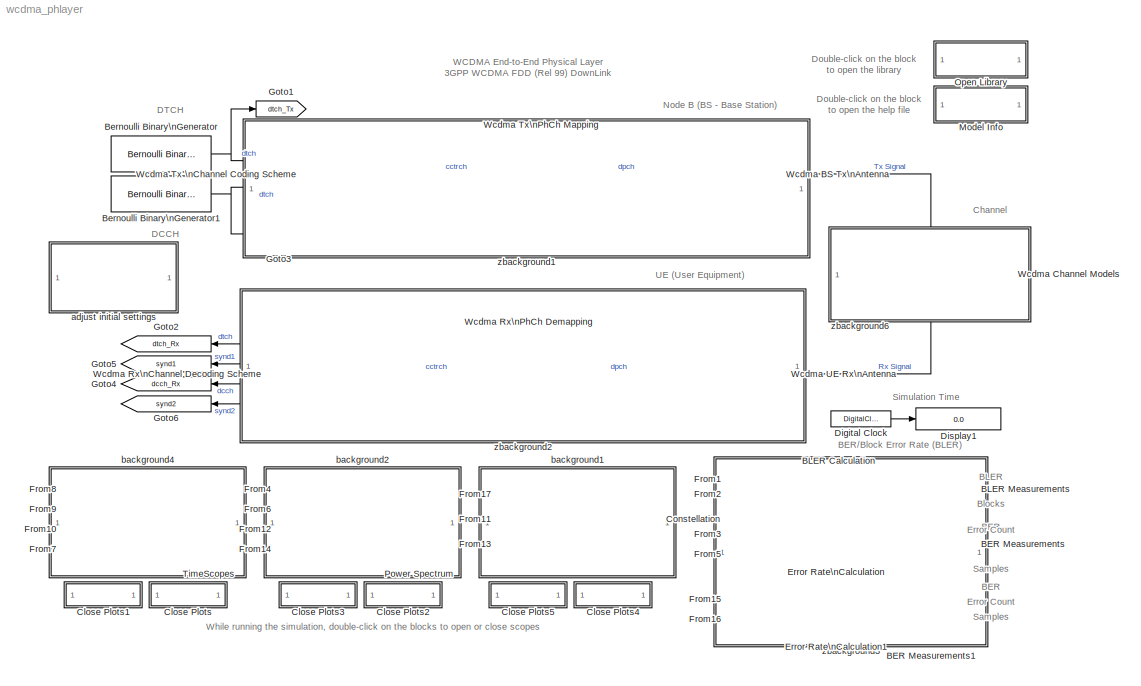
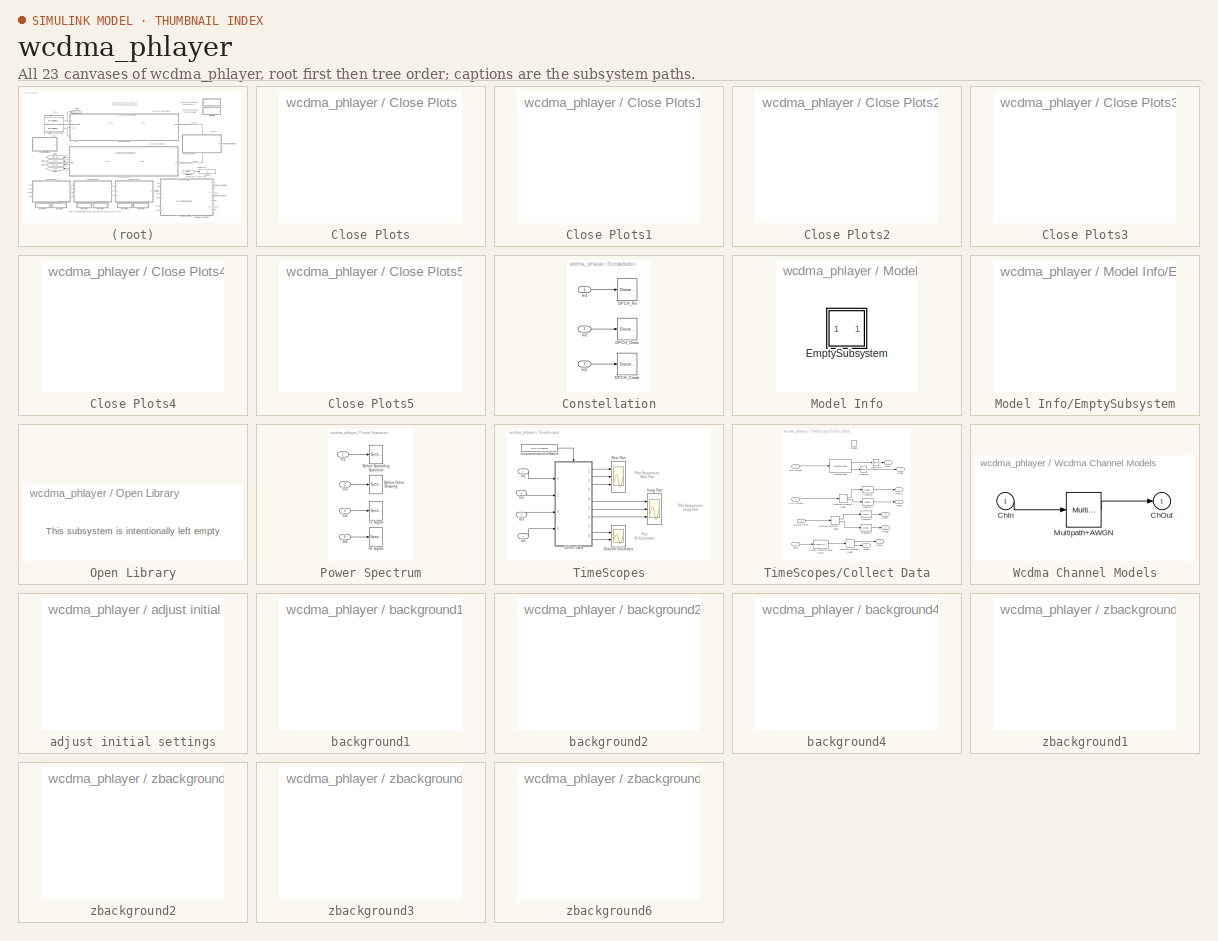
[diagram: thumbnail index - all 23 canvases of the model, root first then tree order]
MODEL wcdma_phlayer
KIND model
CONFIG PreLoadFcn = wcdma_loadinitphlayer;
WORKSPACE source: external: M-Code  (data not in archive)
BLOCK [Display] BER Measurements
  Decimation = 1
  Ports = [1]
BLOCK [Display] BER Measurements1
  Decimation = 1
  Ports = [1]
BLOCK [Reference] BLER Calculation  REF=wcdma_lib/Wcdma Common/BLER Calculation  (lib defined in mdl_415921f2943f)
  Ports = [2, 1]
  ShowPortLabels = on
  SourceBlock = wcdma_lib/Wcdma Common/BLER Calculation
  SourceType = BLER Calculation
  numBitsDelay = totalBitsDelay
  trBlkSetSize = trBlkSetSize
  tti = tti
BLOCK [Display] BLER Measurements
  Decimation = 1
  Ports = [1]
BLOCK [Reference] Bernoulli Binary\nGenerator  REF=commrandsrc2/Bernoulli Binary\nGenerator
  P = 0.5
  Ports = [0, 1]
  ShowPortLabels = on
  SourceBlock = commrandsrc2/Bernoulli Binary\nGenerator
  SourceType = Bernoulli Binary Generator
  Ts = (tti(1)*1e-3)/trBlkSetSize(1)
  frameBased = on
  orient = off
  sampPerFrame = trBlkSetSize(1)
  seed = [123456]
BLOCK [Reference] Bernoulli Binary\nGenerator1  REF=commrandsrc2/Bernoulli Binary\nGenerator
  P = 0.5
  Ports = [0, 1]
  ShowPortLabels = on
  SourceBlock = commrandsrc2/Bernoulli Binary\nGenerator
  SourceType = Bernoulli Binary Generator
  Ts = (tti(2)*1e-3)/trBlkSetSize(2)
  frameBased = on
  orient = off
  sampPerFrame = trBlkSetSize(2)
  seed = [123456]
BLOCK [SubSystem] Close Plots
  MaskDisplay = disp('Close Scopes');
  MaskIconFrame = on
  MaskIconOpaque = on
  MaskIconRotate = none
  MaskIconUnits = autoscale
  MinAlgLoopOccurrences = off
  OpenFcn = ssName = gcs;                                                      \n  set_param([ssName '/TimeScopes/Real Part'],'Open','off');        \n  set_param([ssName '/TimeScopes/Imag Part'],'Open','off');        \n  set_param([ssName '/TimeScopes/Channel Estimates'],'Open','off');\n
  Ports = []
  PropExecContextAcrossSSBoundary = on
  RTWSystemCode = Auto
  TreatAsAtomicUnit = off
BLOCK [SubSystem] Close Plots1
  MaskDisplay = disp('Open Scopes');
  MaskIconFrame = on
  MaskIconOpaque = on
  MaskIconRotate = none
  MaskIconUnits = autoscale
  MinAlgLoopOccurrences = off
  OpenFcn = ssName=gcs;                                                       \nset_param([ssName '/TimeScopes/Real Part'],'Open','on');          \n  set_param([ssName '/TimeScopes/Imag Part'],'Open','on');        \n  set_param([ssName '/TimeScopes/Channel Estimates'],'Open','on');
  Ports = []
  PropExecContextAcrossSSBoundary = on
  RTWSystemCode = Auto
  TreatAsAtomicUnit = off
BLOCK [SubSystem] Close Plots2
  MaskDisplay = disp('Close Scopes');
  MaskIconFrame = on
  MaskIconOpaque = on
  MaskIconRotate = none
  MaskIconUnits = autoscale
  MinAlgLoopOccurrences = off
  OpenFcn = set_param([gcs '/Power Spectrum/Before Spreading Spectrum'],'OpenScopeAtSimStart','off');          \n  set_param([gcs '/Power Spectrum/Before Pulse Shaping'],'OpenScopeAtSimStart','off');             \n  set_param([gcs '/Power Spectrum/Tx Signal'],'OpenScopeAtSimStart','off');                        \n  set_param([gcs '/Power Spectrum/Rx Signal'],'OpenScopeAtSimStart','off');                      ...<+390ch>
  Ports = []
  PropExecContextAcrossSSBoundary = on
  RTWSystemCode = Auto
  TreatAsAtomicUnit = off
BLOCK [SubSystem] Close Plots3
  MaskDisplay = disp('Open Scopes');
  MaskIconFrame = on
  MaskIconOpaque = on
  MaskIconRotate = none
  MaskIconUnits = autoscale
  MinAlgLoopOccurrences = off
  OpenFcn = set_param([gcs '/Power Spectrum/Before Spreading Spectrum'],'OpenScopeAtSimStart','on');          \n  set_param([gcs '/Power Spectrum/Before Pulse Shaping'],'OpenScopeAtSimStart','on');             \n  set_param([gcs '/Power Spectrum/Tx Signal'],'OpenScopeAtSimStart','on');                        \n  set_param([gcs '/Power Spectrum/Rx Signal'],'OpenScopeAtSimStart','on');                        \n...<+400ch>
  Ports = []
  PropExecContextAcrossSSBoundary = on
  RTWSystemCode = Auto
  TreatAsAtomicUnit = off
BLOCK [SubSystem] Close Plots4
  MaskDisplay = disp('Close Scopes');
  MaskIconFrame = on
  MaskIconOpaque = on
  MaskIconRotate = none
  MaskIconUnits = autoscale
  MinAlgLoopOccurrences = off
  OpenFcn = \nset_param([bdroot '/Constellation/DPCH_Rx'],'OpenScopeAtSimStart','off');           \nset_param([bdroot '/Constellation/DPCH_Derot'],'OpenScopeAtSimStart','off');        \nset_param([bdroot '/Constellation/DPCH_Comb'],'OpenScopeAtSimStart','off');         \nsdspfscope2([],[],[],'ScopeUpdate',[bdroot '/Constellation/DPCH_Rx'],'CloseFig');   \nsdspfscope2([],[],[],'ScopeUpdate',[bdroot '/Constella...<+118ch>
  Ports = []
  PropExecContextAcrossSSBoundary = on
  RTWSystemCode = Auto
  TreatAsAtomicUnit = off
BLOCK [SubSystem] Close Plots5
  MaskDisplay = disp('Open Scopes');
  MaskIconFrame = on
  MaskIconOpaque = on
  MaskIconRotate = none
  MaskIconUnits = autoscale
  MinAlgLoopOccurrences = off
  OpenFcn = sdspfscope2([],[],[],'ScopeUpdate',[bdroot '/Constellation/DPCH_Rx'],'OpenFig');   \nsdspfscope2([],[],[],'ScopeUpdate',[bdroot '/Constellation/DPCH_Derot'],'OpenFig');\nsdspfscope2([],[],[],'ScopeUpdate',[bdroot '/Constellation/DPCH_Comb'],'OpenFig'); \nset_param([bdroot '/Constellation/DPCH_Rx'],'OpenScopeAtSimStart','on');           \nset_param([bdroot '/Constellation/DPCH_Derot'],'OpenScopeAtS...<+110ch>
  Ports = []
  PropExecContextAcrossSSBoundary = on
  RTWSystemCode = Auto
  TreatAsAtomicUnit = off
BLOCK [SubSystem] Constellation
  MaskDisplay = disp('Scatter\\nPlot')
  MaskIconFrame = on
  MaskIconOpaque = on
  MaskIconRotate = none
  MaskIconUnits = autoscale
  MinAlgLoopOccurrences = off
  Ports = [3]
  PropExecContextAcrossSSBoundary = on
  RTWSystemCode = Auto
  TreatAsAtomicUnit = on
BLOCK [Reference] Constellation/DPCH_Comb  REF=commsink2/Discrete-Time\nScatter Plot\nScope
  AxisGrid = on
  FigPos = [685 314 327 327]
  FrameNumber = off
  LineColors = [1 0 1]
  LineMarkers = .
  Ports = [1]
  ShowPortLabels = on
  SourceBlock = commsink2/Discrete-Time\nScatter Plot\nScope
  SourceType = Discrete-Time Scatter Plot Scope
  Tag = ScatterPlot
  block_type_ = scatter
  fading = on
  figTitle = Scatter Plot
  inphaseLabel = In-phase Amplitude
  numLinesMax = 50
  numNewFrames = 20
  numTraces = 70
  offsetEye = 0
  openScopeAtSimStart = off
  quadratureLabel = Quadrature Amplitude
  render = off
  sampPerSymb = 1
  xMax = 2.7
  xMin = -2.7
  yMax = 2.7
  yMin = -2.7
BLOCK [Reference] Constellation/DPCH_Derot  REF=commsink2/Discrete-Time\nScatter Plot\nScope
  AxisGrid = on
  FigPos = [344 313 328 328]
  FrameNumber = off
  LineColors = b
  LineMarkers = .
  Ports = [1]
  ShowPortLabels = on
  SourceBlock = commsink2/Discrete-Time\nScatter Plot\nScope
  SourceType = Discrete-Time Scatter Plot Scope
  Tag = ScatterPlot
  block_type_ = scatter
  fading = on
  figTitle = Scatter Plot
  inphaseLabel = In-phase Amplitude
  numLinesMax = 50
  numNewFrames = 5
  numTraces = 30
  offsetEye = 0
  openScopeAtSimStart = off
  quadratureLabel = Quadrature Amplitude
  render = off
  sampPerSymb = 1
  xMax = 0.344086050451824
  xMin = -0.364657245618191
  yMax = 0.336138236123828
  yMin = -0.372605059946187
BLOCK [Reference] Constellation/DPCH_Rx  REF=commsink2/Discrete-Time\nScatter Plot\nScope
  AxisGrid = on
  FigPos = [12 320 320 320]
  FrameNumber = off
  LineColors = [1 0 0]
  LineMarkers = .
  Ports = [1]
  ShowPortLabels = on
  SourceBlock = commsink2/Discrete-Time\nScatter Plot\nScope
  SourceType = Discrete-Time Scatter Plot Scope
  Tag = ScatterPlot
  block_type_ = scatter
  fading = on
  figTitle = Scatter Plot
  inphaseLabel = In-phase Amplitude
  numLinesMax = 50
  numNewFrames = 6
  numTraces = 30
  offsetEye = 0
  openScopeAtSimStart = off
  quadratureLabel = Quadrature Amplitude
  render = off
  sampPerSymb = 1
  xMax = 0.765534044638798
  xMin = -0.857650806774146
  yMax = 0.874669958794914
  yMin = -0.74851489261803
BLOCK [Inport] Constellation/In1
  IconDisplay = Port number
  LatchInput = off
BLOCK [Inport] Constellation/In2
  IconDisplay = Port number
  LatchInput = off
  Port = 2
BLOCK [Inport] Constellation/In3
  IconDisplay = Port number
  LatchInput = off
  Port = 3
BLOCK [DigitalClock] Digital Clock
  SampleTime = 0.001
BLOCK [Display] Display1
  Decimation = 1
  Ports = [1]
BLOCK [Reference] Error Rate\nCalculation  REF=commsink2/Error Rate\nCalculation
  N = totalBitsDelay(1)
  PMode = Port
  Ports = [2, 1]
  RsMode2 = off
  SourceBlock = commsink2/Error Rate\nCalculation
  SourceType = Error Rate Calculation
  WsName = ErrorVec
  cp_mode = Entire frame
  maxBits = 1e6
  numErr = 100
  st_delay = 0
  stop = off
  subframe = []
BLOCK [Reference] Error Rate\nCalculation1  REF=commsink2/Error Rate\nCalculation
  N = totalBitsDelay(2)
  PMode = Port
  Ports = [2, 1]
  RsMode2 = off
  SourceBlock = commsink2/Error Rate\nCalculation
  SourceType = Error Rate Calculation
  WsName = ErrorVec
  cp_mode = Entire frame
  maxBits = 1e6
  numErr = 100
  st_delay = 0
  stop = off
  subframe = []
BLOCK [From] From1
  CloseFcn = tagdialog Close
  DialogController = Simulink.DDGSource
  GotoTag = synd1
BLOCK [From] From10
  CloseFcn = tagdialog Close
  DialogController = Simulink.DDGSource
  GotoTag = DPCH_Tx_all
BLOCK [From] From11
  CloseFcn = tagdialog Close
  DialogController = Simulink.DDGSource
  GotoTag = DPCH_Derot
BLOCK [From] From12
  CloseFcn = tagdialog Close
  DialogController = Simulink.DDGSource
  GotoTag = ToChannel
BLOCK [From] From13
  CloseFcn = tagdialog Close
  DialogController = Simulink.DDGSource
  GotoTag = DPCH_Comb
BLOCK [From] From14
  CloseFcn = tagdialog Close
  DialogController = Simulink.DDGSource
  GotoTag = RxSignal
BLOCK [From] From15
  CloseFcn = tagdialog Close
  DialogController = Simulink.DDGSource
  GotoTag = dcch_Tx
BLOCK [From] From16
  CloseFcn = tagdialog Close
  DialogController = Simulink.DDGSource
  GotoTag = dcch_Rx
BLOCK [From] From17
  CloseFcn = tagdialog Close
  DialogController = Simulink.DDGSource
  GotoTag = DPCH_Rx
BLOCK [From] From2
  CloseFcn = tagdialog Close
  DialogController = Simulink.DDGSource
  GotoTag = synd2
BLOCK [From] From3
  CloseFcn = tagdialog Close
  DialogController = Simulink.DDGSource
  GotoTag = dtch_Tx
BLOCK [From] From4
  CloseFcn = tagdialog Close
  DialogController = Simulink.DDGSource
  GotoTag = DPCH_Tx
BLOCK [From] From5
  CloseFcn = tagdialog Close
  DialogController = Simulink.DDGSource
  GotoTag = dtch_Rx
BLOCK [From] From6
  CloseFcn = tagdialog Close
  DialogController = Simulink.DDGSource
  GotoTag = DPCH_Tx_all
BLOCK [From] From7
  CloseFcn = tagdialog Close
  DialogController = Simulink.DDGSource
  GotoTag = chEst
BLOCK [From] From8
  CloseFcn = tagdialog Close
  DialogController = Simulink.DDGSource
  GotoTag = DPCH_Tx
BLOCK [From] From9
  CloseFcn = tagdialog Close
  DialogController = Simulink.DDGSource
  GotoTag = DPCH_Tx_sprd
BLOCK [Goto] Goto1
  DialogController = Simulink.DDGSource
  GotoTag = dtch_Tx
  TagVisibility = global
BLOCK [Goto] Goto2
  DialogController = Simulink.DDGSource
  GotoTag = dtch_Rx
  TagVisibility = global
BLOCK [Goto] Goto3
  DialogController = Simulink.DDGSource
  GotoTag = dcch_Tx
  TagVisibility = global
BLOCK [Goto] Goto4
  DialogController = Simulink.DDGSource
  GotoTag = dcch_Rx
  TagVisibility = global
BLOCK [Goto] Goto5
  DialogController = Simulink.DDGSource
  GotoTag = synd1
  TagVisibility = global
BLOCK [Goto] Goto6
  DialogController = Simulink.DDGSource
  GotoTag = synd2
  TagVisibility = global
BLOCK [SubSystem] Model Info
  CopyFcn = slcm CopyBlock;
  DeleteFcn = slcm Cancel;
  InitFcn = slcm('UpdateAllCMBlocksInThisModelInit')
  LoadFcn = slcm LoadBlock;
  MaskCallbackString = ||||||||||||||||||||||||||||||
  MaskDescription = This block allows revision control information to be displayed within the model.
  MaskDisplay = text(str2num(LeftAlignmentValue), 0.5, MaskDisplayString, 'HorizontalAlignment', HorizontalTextAlignment)\n
  MaskEnableString = on,on,on,on,on,on,on,on,on,on,on,on,on,on,on,on,on,on,on,on,on,on,on,on,on,on,on,on,on,on,on
  MaskIconFrame = on
  MaskIconOpaque = on
  MaskIconRotate = none
  MaskIconUnits = normalized
  MaskPromptString = InitialSaveTempField|InitialBlockCM|BlockCM|Frame|SaveTempField|DisplayStringWithTags|MaskDisplayString|HorizontalTextAlignment|LeftAlignmentValue|SourceBlockDiagram|TagMaxNumber|CMTag1|CMTag2|CMTag3|CMTag4|CMTag5|CMTag6|CMTag7|CMTag8|CMTag9|CMTag10|CMTag11|CMTag12|CMTag13|CMTag14|CMTag15|CMTag16|CMTag17|CMTag18|CMTag19|CMTag20
  MaskSelfModifiable = on
  MaskStyleString = edit,edit,edit,edit,edit,edit,edit,edit,edit,edit,edit,edit,edit,edit,edit,edit,edit,edit,edit,edit,edit,edit,edit,edit,edit,edit,edit,edit,edit,edit,edit
  MaskTabNameString = ,,,,,,,,,,,,,,,,,,,,,,,,,,,,,,
  MaskToolTipString = on,on,on,on,on,on,on,on,on,on,on,on,on,on,on,on,on,on,on,on,on,on,on,on,on,on,on,on,on,on,on
  MaskTunableValueString = on,on,on,on,on,on,on,on,on,on,on,on,on,on,on,on,on,on,on,on,on,on,on,on,on,on,on,on,on,on,on
  MaskType = CMBlock
  MaskValueString = |none|none|on||Info|Info|Center|0.5|wcdma_phlayer|20||||||||||||||||||||
  MaskVarAliasString = ,,,,,,,,,,,,,,,,,,,,,,,,,,,,,,
  MaskVariables = InitialSaveTempField=&1;InitialBlockCM=&2;BlockCM=&3;Frame=&4;SaveTempField=&5;DisplayStringWithTags=&6;MaskDisplayString=&7;HorizontalTextAlignment=&8;LeftAlignmentValue=&9;SourceBlockDiagram=&10;TagMaxNumber=@11;CMTag1=&12;CMTag2=&13;CMTag3=&14;CMTag4=&15;CMTag5=&16;CMTag6=&17;CMTag7=&18;CMTag8=&19;CMTag9=&20;CMTag10=&21;CMTag11=&22;CMTag12=&23;CMTag13=&24;CMTag14=&25;CMTag15=&26;CMTag16=&27;CMT...<+45ch>
  MaskVisibilityString = off,off,off,off,off,off,off,off,off,off,off,off,off,off,off,off,off,off,off,off,off,off,off,off,off,off,off,off,off,off,off
  MinAlgLoopOccurrences = off
  NameChangeFcn = slcm Rename;
  OpenFcn = commdemohelp;
  Ports = []
  PostSaveFcn = slcm('UpdateAllCMBlocksInThisModel')
  PropExecContextAcrossSSBoundary = on
  RTWSystemCode = Auto
  TreatAsAtomicUnit = off
BLOCK [SubSystem] Model Info/EmptySubsystem
  MinAlgLoopOccurrences = off
  Ports = []
  PropExecContextAcrossSSBoundary = on
  RTWSystemCode = Auto
  TreatAsAtomicUnit = off
BLOCK [SubSystem] Open Library
  MaskDisplay = disp('WCDMA\\nLibrary')
  MaskIconFrame = on
  MaskIconOpaque = on
  MaskIconRotate = none
  MaskIconUnits = autoscale
  MinAlgLoopOccurrences = off
  OpenFcn = open('wcdma_lib.mdl');
  Ports = []
  PropExecContextAcrossSSBoundary = on
  RTWSystemCode = Auto
  ShowPortLabels = off
  TreatAsAtomicUnit = off
BLOCK [SubSystem] Power Spectrum
  MaskDisplay = disp('Power\\nSpectrum')
  MaskIconFrame = on
  MaskIconOpaque = on
  MaskIconRotate = none
  MaskIconUnits = autoscale
  MinAlgLoopOccurrences = off
  Ports = [4]
  PropExecContextAcrossSSBoundary = on
  RTWSystemCode = Auto
  TreatAsAtomicUnit = on
BLOCK [Reference] Power Spectrum/Before Pulse Shaping  REF=dspsnks4/Spectrum\nScope
  AxisGrid = on
  AxisLegend = off
  AxisProperties = off
  AxisZoom = off
  BufferSize = 256
  DisplayProperties = off
  Domain = Frequency
  FFTlength = 128
  FigPos = [358 496 308 199]
  FrameNumber = off
  HorizSpan = 1
  InheritXIncr = on
  LineColors = [1 0 0]
  LineProperties = off
  Memory = off
  OpenScopeAtSimStart = off
  OpenScopeImmediately = off
  Overlap = 0
  Ports = [1]
  ScopeProperties = on
  ShowPortLabels = off
  SourceBlock = dspsnks4/Spectrum\nScope
  SourceType = Spectrum Scope
  UseBuffer = on
  XIncr = 1.0
  XLabel = Samples
  XRange = [-Fs/2...Fs/2]
  XUnits = Hertz
  YLabel = Magnitude, dB
  YMax = 20
  YMin = -20
  YUnits = dB
  inpFftLenInherit = off
  numAvg = 20
BLOCK [Reference] Power Spectrum/Before Spreading Spectrum  REF=dspsnks4/Spectrum\nScope
  AxisGrid = on
  AxisLegend = off
  AxisProperties = off
  AxisZoom = off
  BufferSize = 64
  DisplayProperties = off
  Domain = Frequency
  FFTlength = 128
  FigPos = [29 496 308 199]
  FrameNumber = off
  HorizSpan = 1
  InheritXIncr = on
  LineColors = [1 0 0]
  LineProperties = off
  Memory = off
  OpenScopeAtSimStart = off
  OpenScopeImmediately = off
  Overlap = 0
  Ports = [1]
  ScopeProperties = on
  ShowPortLabels = off
  SourceBlock = dspsnks4/Spectrum\nScope
  SourceType = Spectrum Scope
  UseBuffer = on
  XIncr = 1.0
  XLabel = Samples
  XRange = [-Fs/2...Fs/2]
  XUnits = Hertz
  YLabel = Magnitude, dB
  YMax = 19.2304598955481
  YMin = -0.913387640631292
  YUnits = Magnitude
  inpFftLenInherit = off
  numAvg = 2
BLOCK [Inport] Power Spectrum/In1
  IconDisplay = Port number
  LatchInput = off
BLOCK [Inport] Power Spectrum/In3
  IconDisplay = Port number
  LatchInput = off
  Port = 2
BLOCK [Inport] Power Spectrum/In4
  IconDisplay = Port number
  LatchInput = off
  Port = 3
BLOCK [Inport] Power Spectrum/In6
  IconDisplay = Port number
  LatchInput = off
  Port = 4
BLOCK [Reference] Power Spectrum/Rx Signal  REF=dspsnks4/Spectrum\nScope
  AxisGrid = on
  AxisLegend = off
  AxisProperties = off
  AxisZoom = off
  BufferSize = 2048
  DisplayProperties = off
  Domain = Frequency
  FFTlength = 128
  FigPos = [289 234 381 201]
  FrameNumber = off
  HorizSpan = 1
  InheritXIncr = on
  LineColors = [1 0 0]
  LineProperties = off
  Memory = off
  OpenScopeAtSimStart = off
  OpenScopeImmediately = off
  Overlap = 0
  Ports = [1]
  ScopeProperties = on
  ShowPortLabels = off
  SourceBlock = dspsnks4/Spectrum\nScope
  SourceType = Spectrum Scope
  UseBuffer = on
  XIncr = 1.0
  XLabel = Samples
  XRange = [-Fs/2...Fs/2]
  XUnits = Hertz
  YLabel = Magnitude, dB
  YMax = 17.9084191472902
  YMin = 10.012094494741
  YUnits = dB
  inpFftLenInherit = off
  numAvg = 100
BLOCK [Reference] Power Spectrum/Tx Signal  REF=dspsnks4/Spectrum\nScope
  AxisGrid = on
  AxisLegend = off
  AxisProperties = off
  AxisZoom = off
  BufferSize = 2048
  DisplayProperties = off
  Domain = Frequency
  FFTlength = 128
  FigPos = [695 496 308 198]
  FrameNumber = off
  HorizSpan = 1
  InheritXIncr = on
  LineColors = [1 0 0]
  LineProperties = off
  Memory = off
  OpenScopeAtSimStart = off
  OpenScopeImmediately = off
  Overlap = 0
  Ports = [1]
  ScopeProperties = on
  ShowPortLabels = off
  SourceBlock = dspsnks4/Spectrum\nScope
  SourceType = Spectrum Scope
  UseBuffer = on
  XIncr = 1.0
  XLabel = Samples
  XRange = [-Fs/2...Fs/2]
  XUnits = Hertz
  YLabel = Magnitude, dB
  YMax = 20
  YMin = -50
  YUnits = dB
  inpFftLenInherit = off
  numAvg = 100
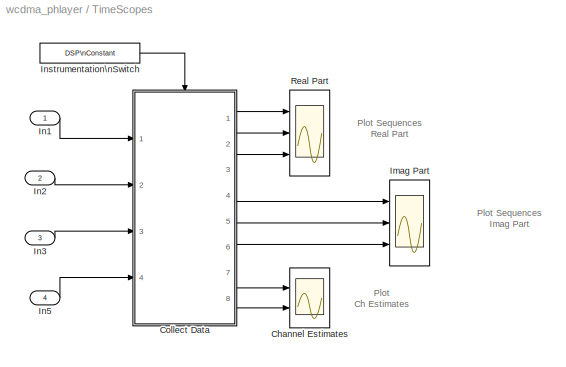
BLOCK [SubSystem] TimeScopes
  MaskDisplay = disp('Time\\nScopes')
  MaskIconFrame = on
  MaskIconOpaque = on
  MaskIconRotate = none
  MaskIconUnits = pixels
  MinAlgLoopOccurrences = off
  Ports = [4]
  PropExecContextAcrossSSBoundary = on
  RTWSystemCode = Auto
  TreatAsAtomicUnit = on
BLOCK [Scope] TimeScopes/Channel Estimates
  DataFormat = Structure
  NumInputPorts = 2
  Ports = [2]
  SaveName = ScopeData4
  TimeRange = 0.1
  YMax = 0.5~0.3
  YMin = -0.15~-0.35
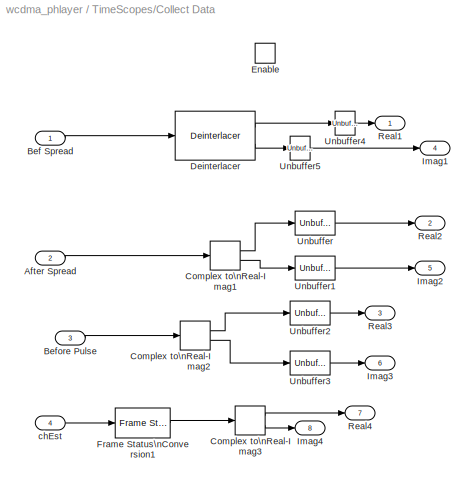
BLOCK [SubSystem] TimeScopes/Collect Data
  MaskIconFrame = on
  MaskIconOpaque = on
  MaskIconRotate = none
  MaskIconUnits = autoscale
  MinAlgLoopOccurrences = off
  Ports = [4, 8, 1]
  PropExecContextAcrossSSBoundary = on
  RTWSystemCode = Auto
  TreatAsAtomicUnit = on
BLOCK [Inport] TimeScopes/Collect Data/After Spread
  IconDisplay = Port number
  LatchInput = off
  Port = 2
BLOCK [Inport] TimeScopes/Collect Data/Bef Spread
  IconDisplay = Port number
  LatchInput = off
BLOCK [Inport] TimeScopes/Collect Data/Before Pulse
  IconDisplay = Port number
  LatchInput = off
  Port = 3
BLOCK [ComplexToRealImag] TimeScopes/Collect Data/Complex to\nReal-Imag1
  Output = Real and imag
  Ports = [1, 2]
BLOCK [ComplexToRealImag] TimeScopes/Collect Data/Complex to\nReal-Imag2
  Output = Real and imag
  Ports = [1, 2]
BLOCK [ComplexToRealImag] TimeScopes/Collect Data/Complex to\nReal-Imag3
  Output = Real and imag
  Ports = [1, 2]
BLOCK [Reference] TimeScopes/Collect Data/Deinterlacer  REF=commsequence2/Deinterlacer
  Ports = [1, 2]
  SourceBlock = commsequence2/Deinterlacer
  SourceType = Deinterlacer
BLOCK [EnablePort] TimeScopes/Collect Data/Enable
  Ports = []
BLOCK [Reference] TimeScopes/Collect Data/Frame Status\nConversion1  REF=dspsigattribs/Frame Status\nConversion
  Ports = [1, 1]
  ShowPortLabels = off
  SourceBlock = dspsigattribs/Frame Status\nConversion
  SourceType = Frame Status Conversion
  growRefPort = off
  outframe = Sample-based
BLOCK [Outport] TimeScopes/Collect Data/Imag1
  BusOutputAsStruct = off
  IconDisplay = Port number
  Port = 4
BLOCK [Outport] TimeScopes/Collect Data/Imag2
  BusOutputAsStruct = off
  IconDisplay = Port number
  Port = 5
BLOCK [Outport] TimeScopes/Collect Data/Imag3
  BusOutputAsStruct = off
  IconDisplay = Port number
  Port = 6
BLOCK [Outport] TimeScopes/Collect Data/Imag4
  BusOutputAsStruct = off
  IconDisplay = Port number
  Port = 8
BLOCK [Outport] TimeScopes/Collect Data/Real1
  BusOutputAsStruct = off
  IconDisplay = Port number
BLOCK [Outport] TimeScopes/Collect Data/Real2
  BusOutputAsStruct = off
  IconDisplay = Port number
  Port = 2
BLOCK [Outport] TimeScopes/Collect Data/Real3
  BusOutputAsStruct = off
  IconDisplay = Port number
  Port = 3
BLOCK [Outport] TimeScopes/Collect Data/Real4
  BusOutputAsStruct = off
  IconDisplay = Port number
  Port = 7
BLOCK [Reference] TimeScopes/Collect Data/Unbuffer  REF=dspbuff3/Unbuffer
  Ports = [1, 1]
  SourceBlock = dspbuff3/Unbuffer
  SourceType = Unbuffer
  ic = 0
BLOCK [Reference] TimeScopes/Collect Data/Unbuffer1  REF=dspbuff3/Unbuffer
  Ports = [1, 1]
  SourceBlock = dspbuff3/Unbuffer
  SourceType = Unbuffer
  ic = 0
BLOCK [Reference] TimeScopes/Collect Data/Unbuffer2  REF=dspbuff3/Unbuffer
  Ports = [1, 1]
  SourceBlock = dspbuff3/Unbuffer
  SourceType = Unbuffer
  ic = 0
BLOCK [Reference] TimeScopes/Collect Data/Unbuffer3  REF=dspbuff3/Unbuffer
  Ports = [1, 1]
  SourceBlock = dspbuff3/Unbuffer
  SourceType = Unbuffer
  ic = 0
BLOCK [Reference] TimeScopes/Collect Data/Unbuffer4  REF=dspbuff3/Unbuffer
  Ports = [1, 1]
  SourceBlock = dspbuff3/Unbuffer
  SourceType = Unbuffer
  ic = 0
BLOCK [Reference] TimeScopes/Collect Data/Unbuffer5  REF=dspbuff3/Unbuffer
  Ports = [1, 1]
  SourceBlock = dspbuff3/Unbuffer
  SourceType = Unbuffer
  ic = 0
BLOCK [Inport] TimeScopes/Collect Data/chEst
  IconDisplay = Port number
  LatchInput = off
  Port = 4
BLOCK [Scope] TimeScopes/Imag Part
  DataFormat = Structure
  MaxDataPoints = 512
  NumInputPorts = 3
  Ports = [3]
  SaveName = ScopeData5
  TimeRange = 0.0001500000000000008
  YMax = 1.5~1.5~1.5
  YMin = -0.5~-1.5~-1.5
BLOCK [Inport] TimeScopes/In1
  IconDisplay = Port number
  LatchInput = off
BLOCK [Inport] TimeScopes/In2
  IconDisplay = Port number
  LatchInput = off
  Port = 2
BLOCK [Inport] TimeScopes/In3
  IconDisplay = Port number
  LatchInput = off
  Port = 3
BLOCK [Inport] TimeScopes/In5
  IconDisplay = Port number
  LatchInput = off
  Port = 4
BLOCK [Reference] TimeScopes/Instrumentation\nSwitch  REF=dspsrcs4/DSP\nConstant
  FramebasedOutput = off
  InterpretAs1D = off
  Ports = [0, 1]
  SampleMode = Discrete
  ShowPortLabels = on
  SourceBlock = dspsrcs4/DSP\nConstant
  SourceType = DSP Constant
  Ts = 1/15e3
  Value = 1
  additionalParams = off
  allowOverrides = on
  continuousOutput = Sample-based
  dataType = Inherit from 'Constant value'
  discreteOutput = Sample-based
  fracBitsMode = Best precision
  framePeriod = 1/15e3
  isSigned = on
  numFracBits = 15
  sampTime = 1/15e3
  udDataType = sfix(16)
  wordLen = 16
BLOCK [Scope] TimeScopes/Real Part
  DataFormat = Structure
  MaxDataPoints = 512
  NumInputPorts = 3
  Ports = [3]
  SaveName = ScopeData6
  TimeRange = 0.0001500000000000008
  YMax = 1.5~1.5~1.5
  YMin = -0.5~-1.5~-1.5
BLOCK [Reference] Wcdma BS Tx\nAntenna  REF=wcdma_lib/Wcdma BS Transmitter/Wcdma BS Tx\nAntenna  (lib defined in mdl_415921f2943f)
  Ports = [1, 1]
  ShowPortLabels = on
  SourceBlock = wcdma_lib/Wcdma BS Transmitter/Wcdma BS Tx\nAntenna
  SourceType = Wcdma BS Tx Antenna
  checkparams = off
  dpchCode = dpchCode
  numTapsRRC = numTapsRRC
  overSampling = overSampling
  powerVector = powerVector
  scrCode = scrCode
  slotFormat = slotFormat
BLOCK [SubSystem] Wcdma Channel Models
  AttributesFormatString = %<BlockChoice>
  BlockChoice = Multipath+AWGN
  MemberBlocks = AWGN,Multipath+AWGN,No Channel
  MinAlgLoopOccurrences = off
  Ports = [1, 1]
  PropExecContextAcrossSSBoundary = on
  RTWSystemCode = Auto
  ShowPortLabels = off
  TemplateBlock = wcdma_lib/Wcdma Channel Model/Wcdma Channel Models
  TreatAsAtomicUnit = off
BLOCK [Inport] Wcdma Channel Models/ChIn
  IconDisplay = Port number
  LatchInput = off
BLOCK [Outport] Wcdma Channel Models/ChOut
  BusOutputAsStruct = off
  IconDisplay = Port number
BLOCK [Reference] Wcdma Channel Models/Multipath+AWGN  REF=wcdma_lib/Wcdma Channel Model/Multipath+AWGN  (lib defined in mdl_415921f2943f)
  Ports = [1, 1]
  ShowPortLabels = on
  SourceBlock = wcdma_lib/Wcdma Channel Model/Multipath+AWGN
BLOCK [Reference] Wcdma Rx\nChannel Decoding Scheme  REF=wcdma_lib/Wcdma Multiplexing\nand Channel Coding/Wcdma Rx\nChannel Decoding Scheme  (lib defined in mdl_415921f2943f)
  Ports = [1, 4]
  RMAttribute = RMAttribute
  ShowPortLabels = on
  SourceBlock = wcdma_lib/Wcdma Multiplexing\nand Channel Coding/Wcdma Rx\nChannel Decoding Scheme
  SourceType = Wcdma DL Rx Channel Decoding Scheme
  checkParams = off
  crcSize = crcSize
  errorCorr = errorCorr
  numPhCH = numPhCH
  posTrCh = posTrCh
  slotFormat = slotFormat
  trBlkSetSize = trBlkSetSize
  trBlkSize = trBlkSize
  tti = tti
BLOCK [Reference] Wcdma Rx\nPhCh Demapping  REF=wcdma_lib/Wcdma Multiplexing\nand Channel Coding/Wcdma Rx\nPhCh Demapping  (lib defined in mdl_415921f2943f)
  Ports = [1, 1]
  ShowPortLabels = on
  SourceBlock = wcdma_lib/Wcdma Multiplexing\nand Channel Coding/Wcdma Rx\nPhCh Demapping
  SourceType = Wcdma Rx Physical Channel Demapping
  checkParams = off
  numBitsRF = numBitsRF
  numPhCH = numPhCH
  slotFormat = slotFormat
BLOCK [Reference] Wcdma Tx \nChannel Coding Scheme  REF=wcdma_lib/Wcdma Multiplexing\nand Channel Coding/Wcdma Tx \nChannel Coding Scheme  (lib defined in mdl_415921f2943f)
  Ports = [2, 1]
  RMAttribute = RMAttribute
  ShowPortLabels = on
  SourceBlock = wcdma_lib/Wcdma Multiplexing\nand Channel Coding/Wcdma Tx \nChannel Coding Scheme
  SourceType = Wcdma DL Tx Channel Coding Scheme
  checkParams = off
  crcSize = crcSize
  errorCorr = errorCorr
  numPhCH = numPhCH
  posTrCh = posTrCh
  slotFormat = slotFormat
  trBlkSetSize = trBlkSetSize
  trBlkSize = trBlkSize
  tti = tti
BLOCK [Reference] Wcdma Tx\nPhCh Mapping  REF=wcdma_lib/Wcdma Multiplexing\nand Channel Coding/Wcdma Tx\nPhCh Mapping  (lib defined in mdl_415921f2943f)
  Ports = [1, 1]
  ShowPortLabels = on
  SourceBlock = wcdma_lib/Wcdma Multiplexing\nand Channel Coding/Wcdma Tx\nPhCh Mapping
  SourceType = Wcdma Tx Physical Channel Mapping
  checkParams = off
  numBitsRF = numBitsRF
  numPhCH = numPhCH
  slotFormat = slotFormat
BLOCK [Reference] Wcdma UE Rx\nAntenna  REF=wcdma_lib/Wcdma UE Receiver/Wcdma UE Rx\nAntenna  (lib defined in mdl_415921f2943f)
  Ports = [1, 1]
  ShowPortLabels = on
  SourceBlock = wcdma_lib/Wcdma UE Receiver/Wcdma UE Rx\nAntenna
  SourceType = Wcdma UE Rx Antenna
  checkParams = off
  dpchCode = dpchCode
  fingerEnables = fingerEnables
  fingerPhases = fingerPhases
  numTapsChEst = numTapsChEst
  numTapsRRC = numTapsRRC
  overSampling = overSampling
  powerVector = powerVector
  scrCode = scrCode
  slotFormat = slotFormat
BLOCK [SubSystem] adjust initial settings
  MaskCallbackString = |wcdma_initmaskphlayer(gcb,'cbShowTrCh');|wcdma_initmaskphlayer(gcb,'cbMeasurChannel');||||||||||wcdma_initmaskphlayer(gcb,'cbShowAntenna');||||||wcdma_initmaskphlayer(gcb,'cbShowChModel');|wcdma_initmaskphlayer(gcb,'cbPropConditions');|||||
  MaskDescription = Use the following mask to select the different parameters for the simulation.
  MaskDisplay = disp('Wcdma Demo:\\nInitial Settings');
  MaskEnableString = on,on,off,off,off,off,off,off,off,off,off,off,on,off,off,off,off,off,on,off,on,off,off,off,off
  MaskHelp = eval('commdemohelp;');
  MaskIconFrame = on
  MaskIconOpaque = on
  MaskIconRotate = none
  MaskIconUnits = autoscale
  MaskInitialization = eStr = wcdma_initmaskphlayer(gcb,'init');\nif(~isempty(eStr.emsg))\nerrordlg(eStr.emsg);\nend\nif(~isempty(eStr.emsg_w))\ndisp(eStr.emsg_w);\nend\n
  MaskPromptString = Power for [DPCH, P-CPICH, PICH, P-CCPCH, SCH] in dB:|----------------------------- Show Transport Channel Settings ------------------------------|DL Measurement channels|Transport block set size:|Transport block size:|TTI (in ms):|CRC Size {24, 16, 12, 8, 0}:|Type of error Protection {None=0, Conv 1/2=1, Conv 1/3=2, Turbo=3}:|Rate matching attribute:|Position of TrCH in radio frame:|Number of PhCH...<+592ch>
  MaskSelfModifiable = on
  MaskStyleString = edit,checkbox,popup(12.2 Kbps|64 Kbps|144 Kbps|384 Kbps|User Defined),edit,edit,edit,edit,edit,edit,popup(Fixed|Flexible),popup(1|2|3),popup(0|1|2|3|4|5|6|7|8|9|10|11|12|13|14|15|16),checkbox,edit,edit,edit,edit,popup(2|4|6|8|10|12|14|16),checkbox,popup(No Channel|Static - AWGN|Multipath Profile - Case 1|Multipath Profile - Case 2|Multipath Profile - Case 3|Multipath Profile - Case 4|Multipath Pro...<+89ch>
  MaskTabNameString = ,,,,,,,,,,,,,,,,,,,,,,,,
  MaskToolTipString = on,on,on,on,on,on,on,on,on,on,on,on,on,on,on,on,on,on,on,on,on,on,on,on,on
  MaskTunableValueString = on,on,on,on,on,on,on,on,on,on,on,on,on,on,on,on,on,on,on,on,on,on,on,on,on
  MaskType = Wcdma Initial Settings Demo
  MaskValueString = [-5.9 -10 -15 -12 -12]|off|12.2 Kbps|[244 100]|[244 100]|[20 40]|[16 12]|[2 2]|[256 256]|Fixed|1|11|off|127|[63 0]|96|21|8|off|Multipath Profile - Case 6|-1|4|[0 260e-9 521e-9 781e-9]|[0 -3 -6 -9]|250
  MaskVarAliasString = ,,,,,,,,,,,,,,,,,,,,,,,,
  MaskVariables = powerVector=@1;showTrCh=@2;measurChannel=@3;trBlkSetSize=@4;trBlkSize=@5;tti=@6;crcSize=@7;errorCorr=@8;RMAttribute=@9;posTrChMask=@10;numPhCH=@11;slotFormat=@12;showAntenna=@13;dpchCode=@14;scrCode=@15;numTapsRRC=@16;numTapsChEst=@17;overSampling=@18;showChModel=@19;propConditions=@20;snrdB=@21;fingerEnables=@22;fingerPhases=@23;fingerPowers=@24;speed=@25;
  MaskVisibilityString = on,on,off,off,off,off,off,off,off,off,off,off,on,off,off,off,off,off,on,off,off,off,off,off,off
  MinAlgLoopOccurrences = off
  Ports = []
  PropExecContextAcrossSSBoundary = on
  RTWSystemCode = Auto
  TreatAsAtomicUnit = off
BLOCK [SubSystem] background1
  MaskDisplay = disp('')
  MaskIconFrame = on
  MaskIconOpaque = on
  MaskIconRotate = none
  MaskIconUnits = autoscale
  MinAlgLoopOccurrences = off
  Ports = []
  PropExecContextAcrossSSBoundary = on
  RTWSystemCode = Auto
  TreatAsAtomicUnit = off
BLOCK [SubSystem] background2
  MaskDisplay = disp('')
  MaskIconFrame = on
  MaskIconOpaque = on
  MaskIconRotate = none
  MaskIconUnits = autoscale
  MinAlgLoopOccurrences = off
  Ports = []
  PropExecContextAcrossSSBoundary = on
  RTWSystemCode = Auto
  TreatAsAtomicUnit = off
BLOCK [SubSystem] background4
  MaskDisplay = disp('')
  MaskIconFrame = on
  MaskIconOpaque = on
  MaskIconRotate = none
  MaskIconUnits = autoscale
  MinAlgLoopOccurrences = off
  Ports = []
  PropExecContextAcrossSSBoundary = on
  RTWSystemCode = Auto
  TreatAsAtomicUnit = off
BLOCK [SubSystem] zbackground1
  MaskDisplay = disp('')
  MaskIconFrame = on
  MaskIconOpaque = on
  MaskIconRotate = none
  MaskIconUnits = autoscale
  MinAlgLoopOccurrences = off
  Ports = []
  Priority = 0
  PropExecContextAcrossSSBoundary = on
  RTWSystemCode = Auto
  ShowPortLabels = off
  TreatAsAtomicUnit = off
BLOCK [SubSystem] zbackground2
  MaskDisplay = disp('')
  MaskIconFrame = on
  MaskIconOpaque = on
  MaskIconRotate = none
  MaskIconUnits = autoscale
  MinAlgLoopOccurrences = off
  Ports = []
  PropExecContextAcrossSSBoundary = on
  RTWSystemCode = Auto
  TreatAsAtomicUnit = off
BLOCK [SubSystem] zbackground3
  MaskDisplay = disp('')
  MaskIconFrame = on
  MaskIconOpaque = on
  MaskIconRotate = none
  MaskIconUnits = autoscale
  MinAlgLoopOccurrences = off
  Ports = []
  PropExecContextAcrossSSBoundary = on
  RTWSystemCode = Auto
  TreatAsAtomicUnit = off
BLOCK [SubSystem] zbackground6
  MaskDisplay = disp('');
  MaskIconFrame = on
  MaskIconOpaque = on
  MaskIconRotate = none
  MaskIconUnits = autoscale
  MinAlgLoopOccurrences = off
  Ports = []
  PropExecContextAcrossSSBoundary = on
  RTWSystemCode = Auto
  TreatAsAtomicUnit = off
ANNOTATION (root): BER
ANNOTATION (root): BER/Block Error Rate (BLER)
ANNOTATION (root): BLER
ANNOTATION (root): Blocks
ANNOTATION (root): Channel
ANNOTATION (root): DCCH
ANNOTATION (root): DTCH
ANNOTATION (root): Double-click on the block\nto open the help file
ANNOTATION (root): Double-click on the block\nto open the library
ANNOTATION (root): Error Count
ANNOTATION (root): Node B (BS - Base Station)
ANNOTATION (root): Samples
ANNOTATION (root): Simulation Time
ANNOTATION (root): UE (User Equipment)
ANNOTATION (root): WCDMA End-to-End Physical Layer\n3GPP WCDMA FDD (Rel 99) DownLink
ANNOTATION (root): While running the simulation, double-click on the blocks to open or close scopes
ANNOTATION Open Library: This subsystem is intentionally left empty
ANNOTATION TimeScopes: Plot Sequences\nImag Part
ANNOTATION TimeScopes: Plot Sequences\nReal Part
ANNOTATION TimeScopes: Plot\nCh Estimates
LINE BLER Calculation:1 -> BLER Measurements:1
NET Bernoulli Binary\nGenerator1:1 -> Goto3:1, Wcdma Tx \nChannel Coding Scheme:2
NET Bernoulli Binary\nGenerator:1 -> Goto1:1, Wcdma Tx \nChannel Coding Scheme:1
LINE Constellation/In1:1 -> Constellation/DPCH_Rx:1
LINE Constellation/In2:1 -> Constellation/DPCH_Derot:1
LINE Constellation/In3:1 -> Constellation/DPCH_Comb:1
LINE Digital Clock:1 -> Display1:1
LINE Error Rate\nCalculation1:1 -> BER Measurements1:1
LINE Error Rate\nCalculation:1 -> BER Measurements:1
LINE From10:1 -> TimeScopes:3
LINE From11:1 -> Constellation:2
LINE From12:1 -> Power Spectrum:3
LINE From13:1 -> Constellation:3
LINE From14:1 -> Power Spectrum:4
LINE From15:1 -> Error Rate\nCalculation1:1
LINE From16:1 -> Error Rate\nCalculation1:2
LINE From17:1 -> Constellation:1
LINE From1:1 -> BLER Calculation:1
LINE From2:1 -> BLER Calculation:2
LINE From3:1 -> Error Rate\nCalculation:1
LINE From4:1 -> Power Spectrum:1
LINE From5:1 -> Error Rate\nCalculation:2
LINE From6:1 -> Power Spectrum:2
LINE From7:1 -> TimeScopes:4
LINE From8:1 -> TimeScopes:1
LINE From9:1 -> TimeScopes:2
LINE Power Spectrum/In1:1 -> Power Spectrum/Before Spreading Spectrum:1
LINE Power Spectrum/In3:1 -> Power Spectrum/Before Pulse Shaping:1
LINE Power Spectrum/In4:1 -> Power Spectrum/Tx Signal:1
LINE Power Spectrum/In6:1 -> Power Spectrum/Rx Signal:1
LINE TimeScopes/Collect Data/After Spread:1 -> TimeScopes/Collect Data/Complex to\nReal-Imag1:1
LINE TimeScopes/Collect Data/Bef Spread:1 -> TimeScopes/Collect Data/Deinterlacer:1
LINE TimeScopes/Collect Data/Before Pulse:1 -> TimeScopes/Collect Data/Complex to\nReal-Imag2:1
LINE TimeScopes/Collect Data/Complex to\nReal-Imag1:1 -> TimeScopes/Collect Data/Unbuffer:1
LINE TimeScopes/Collect Data/Complex to\nReal-Imag1:2 -> TimeScopes/Collect Data/Unbuffer1:1
LINE TimeScopes/Collect Data/Complex to\nReal-Imag2:1 -> TimeScopes/Collect Data/Unbuffer2:1
LINE TimeScopes/Collect Data/Complex to\nReal-Imag2:2 -> TimeScopes/Collect Data/Unbuffer3:1
LINE TimeScopes/Collect Data/Complex to\nReal-Imag3:1 -> TimeScopes/Collect Data/Real4:1
LINE TimeScopes/Collect Data/Complex to\nReal-Imag3:2 -> TimeScopes/Collect Data/Imag4:1
LINE TimeScopes/Collect Data/Deinterlacer:1 -> TimeScopes/Collect Data/Unbuffer4:1
LINE TimeScopes/Collect Data/Deinterlacer:2 -> TimeScopes/Collect Data/Unbuffer5:1
LINE TimeScopes/Collect Data/Frame Status\nConversion1:1 -> TimeScopes/Collect Data/Complex to\nReal-Imag3:1
LINE TimeScopes/Collect Data/Unbuffer1:1 -> TimeScopes/Collect Data/Imag2:1
LINE TimeScopes/Collect Data/Unbuffer2:1 -> TimeScopes/Collect Data/Real3:1
LINE TimeScopes/Collect Data/Unbuffer3:1 -> TimeScopes/Collect Data/Imag3:1
LINE TimeScopes/Collect Data/Unbuffer4:1 -> TimeScopes/Collect Data/Real1:1
LINE TimeScopes/Collect Data/Unbuffer5:1 -> TimeScopes/Collect Data/Imag1:1
LINE TimeScopes/Collect Data/Unbuffer:1 -> TimeScopes/Collect Data/Real2:1
LINE TimeScopes/Collect Data/chEst:1 -> TimeScopes/Collect Data/Frame Status\nConversion1:1
LINE TimeScopes/Collect Data:1 -> TimeScopes/Real Part:1
LINE TimeScopes/Collect Data:2 -> TimeScopes/Real Part:2
LINE TimeScopes/Collect Data:3 -> TimeScopes/Real Part:3
LINE TimeScopes/Collect Data:4 -> TimeScopes/Imag Part:1
LINE TimeScopes/Collect Data:5 -> TimeScopes/Imag Part:2
LINE TimeScopes/Collect Data:6 -> TimeScopes/Imag Part:3
LINE TimeScopes/Collect Data:7 -> TimeScopes/Channel Estimates:1
LINE TimeScopes/Collect Data:8 -> TimeScopes/Channel Estimates:2
LINE TimeScopes/In1:1 -> TimeScopes/Collect Data:1
LINE TimeScopes/In2:1 -> TimeScopes/Collect Data:2
LINE TimeScopes/In3:1 -> TimeScopes/Collect Data:3
LINE TimeScopes/In5:1 -> TimeScopes/Collect Data:4
LINE TimeScopes/Instrumentation\nSwitch:1 -> TimeScopes/Collect Data:enable
LINE Wcdma BS Tx\nAntenna:1 -> Wcdma Channel Models:1
LINE Wcdma Channel Models/ChIn:1 -> Wcdma Channel Models/Multipath+AWGN:1
LINE Wcdma Channel Models/Multipath+AWGN:1 -> Wcdma Channel Models/ChOut:1
LINE Wcdma Channel Models:1 -> Wcdma UE Rx\nAntenna:1
LINE Wcdma Rx\nChannel Decoding Scheme:1 -> Goto2:1
LINE Wcdma Rx\nChannel Decoding Scheme:2 -> Goto5:1
LINE Wcdma Rx\nChannel Decoding Scheme:3 -> Goto4:1
LINE Wcdma Rx\nChannel Decoding Scheme:4 -> Goto6:1
LINE Wcdma Rx\nPhCh Demapping:1 -> Wcdma Rx\nChannel Decoding Scheme:1
LINE Wcdma Tx \nChannel Coding Scheme:1 -> Wcdma Tx\nPhCh Mapping:1
LINE Wcdma Tx\nPhCh Mapping:1 -> Wcdma BS Tx\nAntenna:1
LINE Wcdma UE Rx\nAntenna:1 -> Wcdma Rx\nPhCh Demapping:1
note: NET lines group one-source signal fan-out (src -> all destinations, sorted); 1:1 wires keep LINE
